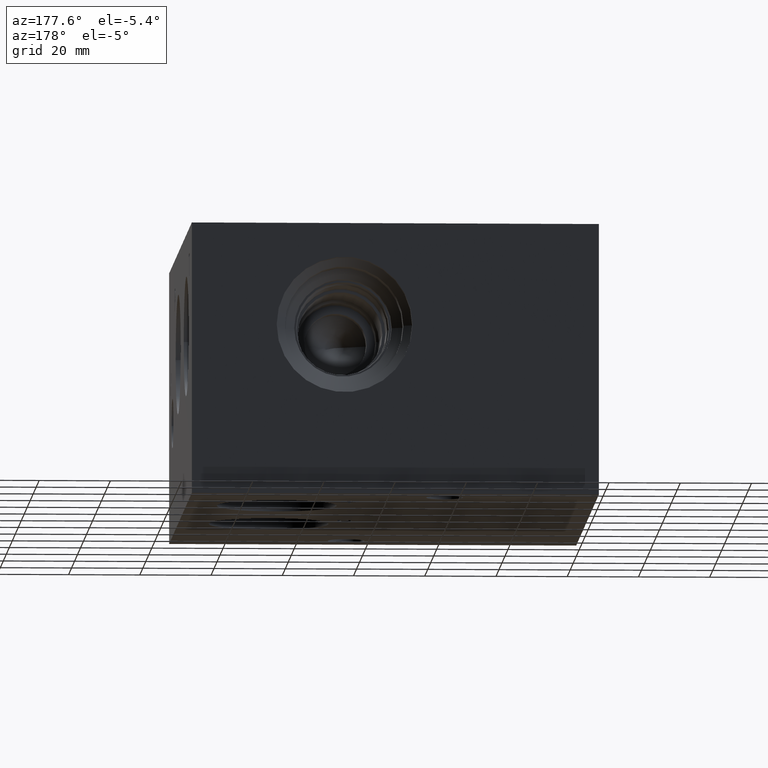
[diagram: clean part render]
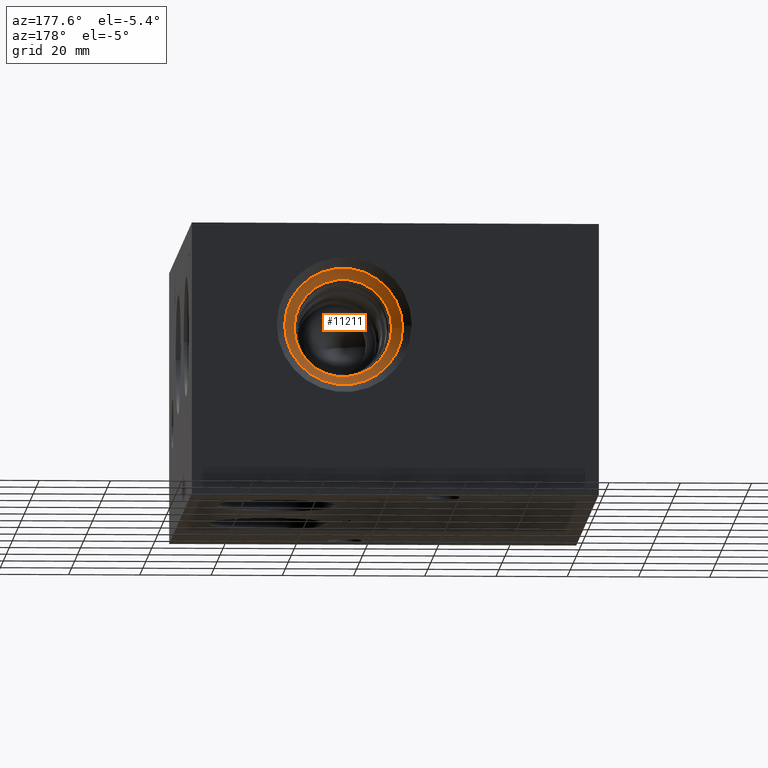
[diagram: same view with one face highlighted and labeled with its STEP entity id]
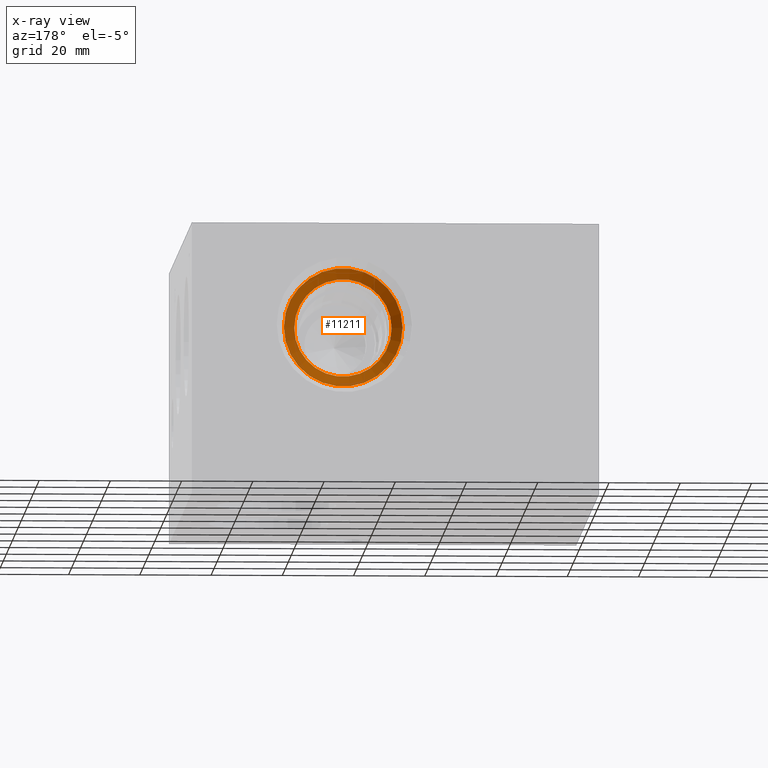
[diagram: x-ray of the same camera — body ghosted, the highlighted face saturated]
A machine part, auxiliary view. The second image highlights one B-rep face of the part: STEP entity #11211.
The next image is the same camera in x-ray: the body ghosted, the highlighted face saturated — about 0% of this face is hidden behind the body in this view.
In plain terms, the highlighted conical surface has half-angle 60 deg.
Its self-contained STEP definition (entity closure, byte-faithful):
#71=CONICAL_SURFACE('',#11713,15.1765,1.04719755876215);
#153=CIRCLE('',#11711,16.6624);
#154=CIRCLE('',#11712,16.6624);
#155=CIRCLE('',#11714,13.6906);
#156=CIRCLE('',#11715,13.6906);
#1210=FACE_OUTER_BOUND('',#1847,.T.);
#1847=EDGE_LOOP('',(#9745,#9746,#9747,#9748,#9749,#9750));
#2961=LINE('',#18969,#4031);
#4031=VECTOR('',#13757,15.1765);
#5322=VERTEX_POINT('',#18962);
#5323=VERTEX_POINT('',#18964);
#5324=VERTEX_POINT('',#18968);
#5325=VERTEX_POINT('',#18970);
#6836=EDGE_CURVE('',#5322,#5323,#153,.T.);
#6837=EDGE_CURVE('',#5323,#5322,#154,.T.);
#6838=EDGE_CURVE('',#5322,#5324,#2961,.T.);
#6839=EDGE_CURVE('',#5324,#5325,#155,.T.);
#6840=EDGE_CURVE('',#5325,#5324,#156,.T.);
#9745=ORIENTED_EDGE('',*,*,#6837,.F.);
#9746=ORIENTED_EDGE('',*,*,#6836,.F.);
#9747=ORIENTED_EDGE('',*,*,#6838,.T.);
#9748=ORIENTED_EDGE('',*,*,#6839,.T.);
#9749=ORIENTED_EDGE('',*,*,#6840,.T.);
#9750=ORIENTED_EDGE('',*,*,#6838,.F.);
#11211=ADVANCED_FACE('',(#1210),#71,.F.);
#11711=AXIS2_PLACEMENT_3D('',#18965,#13751,#13752);
#11712=AXIS2_PLACEMENT_3D('',#18966,#13753,#13754);
#11713=AXIS2_PLACEMENT_3D('',#18967,#13755,#13756);
#11714=AXIS2_PLACEMENT_3D('',#18971,#13758,#13759);
#11715=AXIS2_PLACEMENT_3D('',#18972,#13760,#13761);
#13751=DIRECTION('center_axis',(0.,-1.,0.));
#13752=DIRECTION('ref_axis',(1.,0.,0.));
#13753=DIRECTION('center_axis',(0.,-1.,0.));
#13754=DIRECTION('ref_axis',(1.,0.,0.));
#13755=DIRECTION('center_axis',(0.,1.,0.));
#13756=DIRECTION('ref_axis',(1.,0.,0.));
#13757=DIRECTION('',(0.866025407567213,-0.499999993448042,1.06057524335747E-16));
#13758=DIRECTION('center_axis',(0.,-1.,0.));
#13759=DIRECTION('ref_axis',(1.,0.,0.));
#13760=DIRECTION('center_axis',(0.,-1.,0.));
#13761=DIRECTION('ref_axis',(1.,0.,0.));
#18962=CARTESIAN_POINT('',(54.7624,143.4084,47.625));
#18964=CARTESIAN_POINT('',(88.0872,143.4084,47.625));
#18965=CARTESIAN_POINT('Origin',(71.4248,143.4084,47.625));
#18966=CARTESIAN_POINT('Origin',(71.4248,143.4084,47.625));
#18967=CARTESIAN_POINT('Origin',(71.4248,142.55051525,47.625));
#18968=CARTESIAN_POINT('',(57.7342,141.6926305,47.625));
#18969=CARTESIAN_POINT('',(56.2483,142.55051525,47.625));
#18970=CARTESIAN_POINT('',(85.1154,141.6926305,47.625));
#18971=CARTESIAN_POINT('Origin',(71.4248,141.6926305,47.625));
#18972=CARTESIAN_POINT('Origin',(71.4248,141.6926305,47.625));